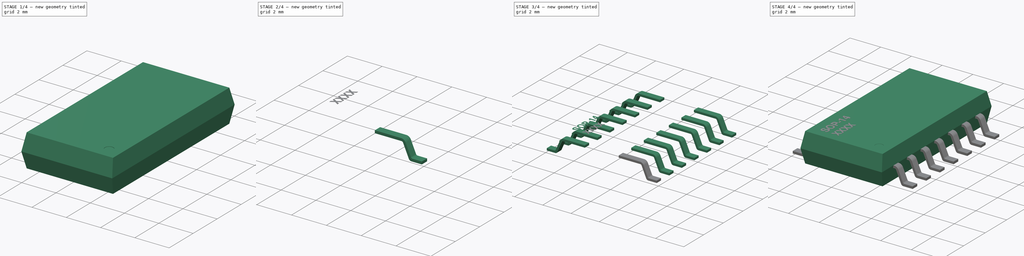
[diagram: build sequence overview — one tinted view per stage of 4, left to right]
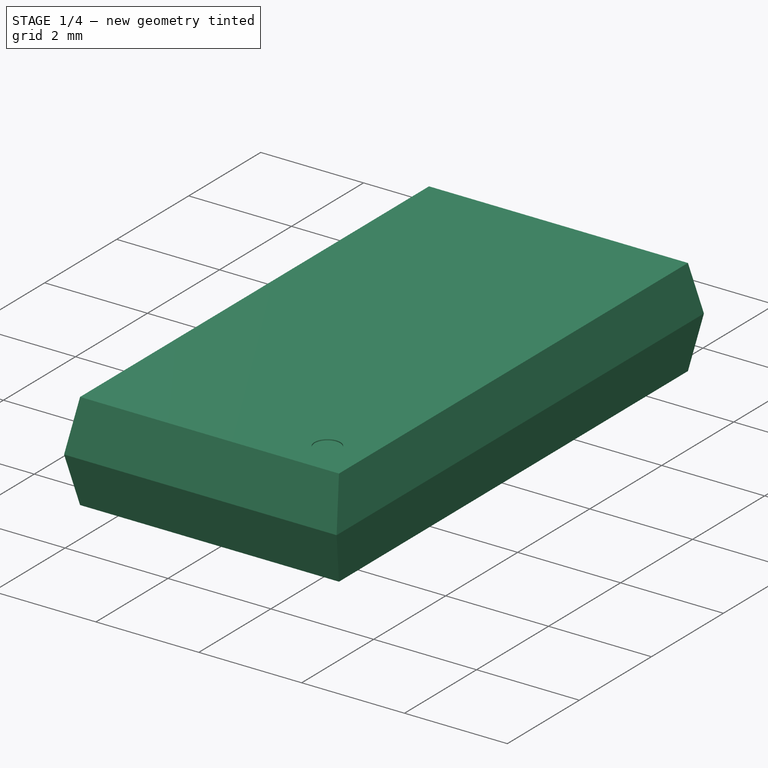
[diagram: stage 1 of 4 — iso view after this stage's code; geometry added in this stage tinted green]
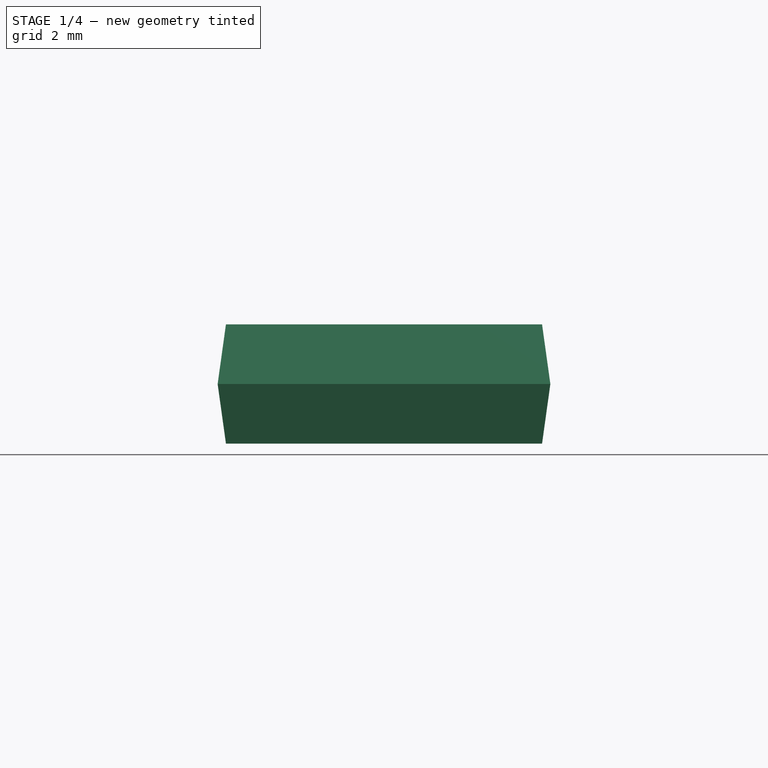
[diagram: stage 1 of 4 — front view after this stage's code; geometry added in this stage tinted green]
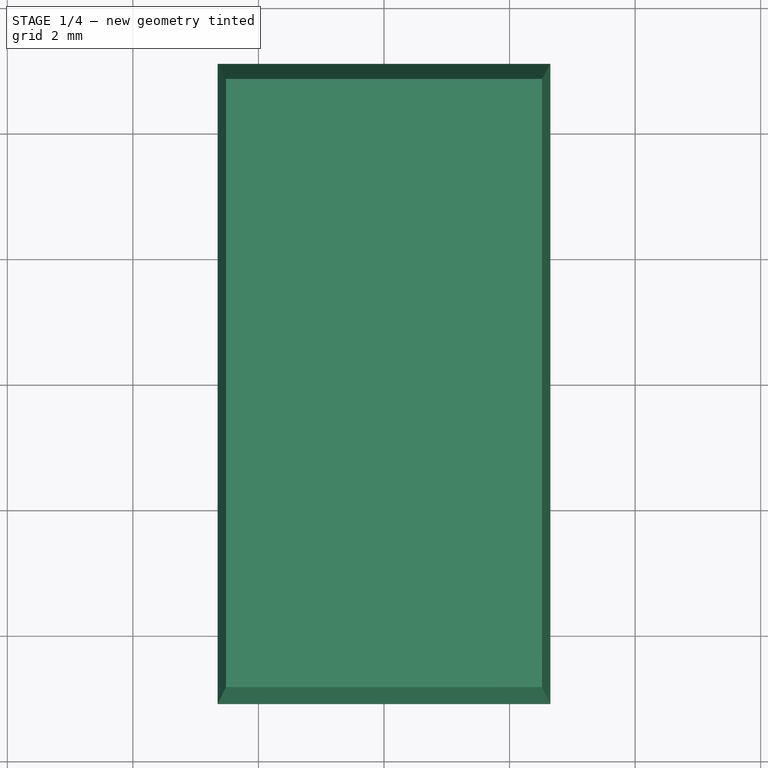
[diagram: stage 1 of 4 — top view after this stage's code; geometry added in this stage tinted green]
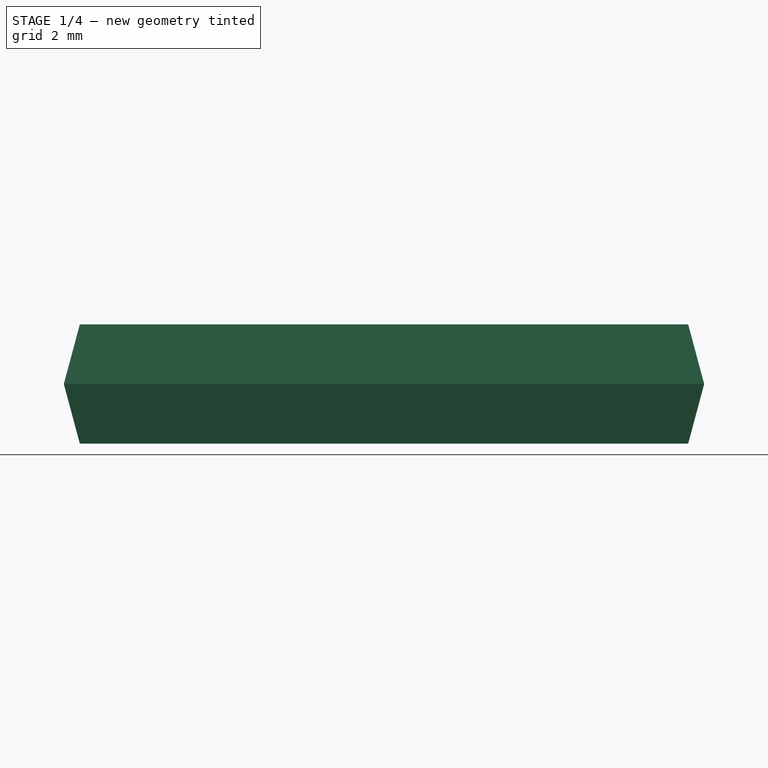
[diagram: stage 1 of 4 — right view after this stage's code; geometry added in this stage tinted green]
FCSTD DOCUMENT  (FreeCAD 0.19R16945 (Git))
Label: Texas Instruments Package NS (SOP-14)
License: All rights reserved
LicenseURL: http://en.wikipedia.org/wiki/All_rights_reserved
objects: Sketcher::SketchObject×6, PartDesign::Body×3, PartDesign::Pad×2, Part::Part2DObjectPython×2, Part::Extrusion×2, Part::FeaturePython×2, PartDesign::AdditiveLoft×1, PartDesign::Pocket×1, PartDesign::ShapeBinder×1, Part::MultiFuse×1
note: 25 computed .brp shape members not serialized (recipe doc carries the construction recipe); baked Part::Feature solids carry a one-line shape summary decoded from their .brp

FEATURE [Sketcher::SketchObject] Sketch  label="Mid"
  AttachmentOffset = pos=(0,0,1.05) rot=(0,0,1;0rad)
  MapMode = 5
  Placement = pos=(0,0,1.05) rot=(0,0,1;0rad)
  Support = -> [XY_Plane]
  expr: Constraints[10] = 10.2
  expr: Constraints[9] = 5.3
  expr: AttachmentOffset.Base.z = 1.05
  sketch-geometry (4):
    g0: LineSegment StartX=-2.65 StartY=5.1 StartZ=0 EndX=2.65 EndY=5.1 EndZ=0
    g1: LineSegment StartX=2.65 StartY=5.1 StartZ=0 EndX=2.65 EndY=-5.1 EndZ=0
    g2: LineSegment StartX=2.65 StartY=-5.1 StartZ=0 EndX=-2.65 EndY=-5.1 EndZ=0
    g3: LineSegment StartX=-2.65 StartY=-5.1 StartZ=0 EndX=-2.65 EndY=5.1 EndZ=0
  constraints (11):
    c: Coincident(g0,g1)
    c: Coincident(g1,g2)
    c: Coincident(g2,g3)
    c: Coincident(g3,g0)
    c: Horizontal(g0)
    c: Horizontal(g2)
    c: Vertical(g1)
    c: Vertical(g3)
    c: Symmetric(g1,g0,g-1)
    c: DistanceX(g0,g0) = 5.3
    c: DistanceY(g1,g1) = 10.2
FEATURE [Sketcher::SketchObject] Sketch001  label="Top"
  AttachmentOffset = pos=(0,0,2) rot=(0,0,1;0rad)
  MapMode = 5
  Placement = pos=(0,0,2) rot=(0,0,1;0rad)
  Support = -> [XY_Plane]
  expr: AttachmentOffset.Base.z = 2
  expr: Constraints[10] = 0.95 * Sketch.Constraints[10]
  expr: Constraints[9] = 0.95 * Sketch.Constraints[9]
  sketch-geometry (4):
    g0: LineSegment StartX=-2.5175 StartY=4.845 StartZ=0 EndX=2.5175 EndY=4.845 EndZ=0
    g1: LineSegment StartX=2.5175 StartY=4.845 StartZ=0 EndX=2.5175 EndY=-4.845 EndZ=0
    g2: LineSegment StartX=2.5175 StartY=-4.845 StartZ=0 EndX=-2.5175 EndY=-4.845 EndZ=0
    g3: LineSegment StartX=-2.5175 StartY=-4.845 StartZ=0 EndX=-2.5175 EndY=4.845 EndZ=0
  constraints (11):
    c: Coincident(g0,g1)
    c: Coincident(g1,g2)
    c: Coincident(g2,g3)
    c: Coincident(g3,g0)
    c: Horizontal(g0)
    c: Horizontal(g2)
    c: Vertical(g1)
    c: Vertical(g3)
    c: Symmetric(g1,g0,g-1)
    c: DistanceX(g0,g0) = 5.035
    c: DistanceY(g1,g1) = 9.69
FEATURE [Sketcher::SketchObject] Sketch002  label="Bottom"
  AttachmentOffset = pos=(0,0,0.1) rot=(0,0,1;0rad)
  MapMode = 5
  Placement = pos=(0,0,0.1) rot=(0,0,1;0rad)
  Support = -> [XY_Plane]
  expr: AttachmentOffset.Base.z = 0.1
  expr: Constraints[10] = Sketch001.Constraints[10]
  expr: Constraints[9] = Sketch001.Constraints[9]
  sketch-geometry (4):
    g0: LineSegment StartX=-2.5175 StartY=4.845 StartZ=0 EndX=2.5175 EndY=4.845 EndZ=0
    g1: LineSegment StartX=2.5175 StartY=4.845 StartZ=0 EndX=2.5175 EndY=-4.845 EndZ=0
    g2: LineSegment StartX=2.5175 StartY=-4.845 StartZ=0 EndX=-2.5175 EndY=-4.845 EndZ=0
    g3: LineSegment StartX=-2.5175 StartY=-4.845 StartZ=0 EndX=-2.5175 EndY=4.845 EndZ=0
  constraints (11):
    c: Coincident(g0,g1)
    c: Coincident(g1,g2)
    c: Coincident(g2,g3)
    c: Coincident(g3,g0)
    c: Horizontal(g0)
    c: Horizontal(g2)
    c: Vertical(g1)
    c: Vertical(g3)
    c: Symmetric(g1,g0,g-1)
    c: DistanceX(g0,g0) = 5.035
    c: DistanceY(g1,g1) = 9.69
FEATURE [PartDesign::AdditiveLoft] AdditiveLoft
  Closed = true
  Profile = -> Sketch001
  Ruled = true
  Sections = -> [Sketch,Sketch002]
FEATURE [PartDesign::Body] Body001  label="Lead"
  Group = -> [Sketch003,Pad]
  Origin = -> Origin001
  Tip = -> Pad
FEATURE [Sketcher::SketchObject] Sketch004
  ExternalGeometry = -> [AdditiveLoft]
  MapMode = 5
  Placement = pos=(0,0,2) rot=(0,0,1;0rad)
  Support = -> [AdditiveLoft]
  sketch-geometry (1):
    g0: Circle CenterX=1.7675 CenterY=-4.095 CenterZ=0 NormalX=0 NormalY=0 NormalZ=1 AngleXU=0 Radius=0.25
  constraints (3):
    c: DistanceY(g-4,g0) = 0.75
    c: DistanceX(g0,g-4) = 0.75
    c: Radius(g0) = 0.25
FEATURE [PartDesign::Pocket] Pocket
  BaseFeature = -> AdditiveLoft
  Length = 0.02
  Length2 = 100
  Profile = -> Sketch004
  Type = 0
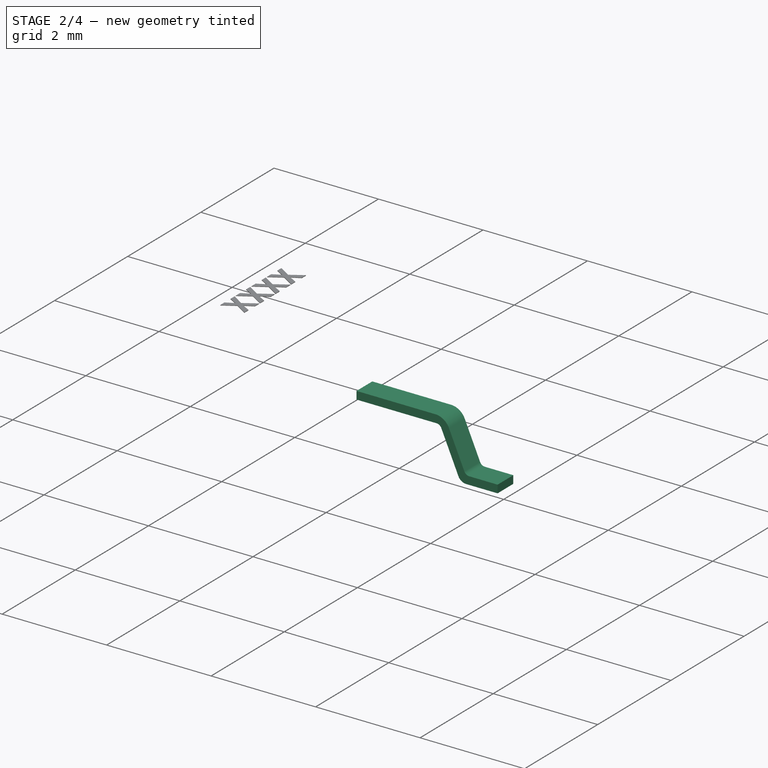
[diagram: stage 2 of 4 — iso view after this stage's code; geometry added in this stage tinted green]
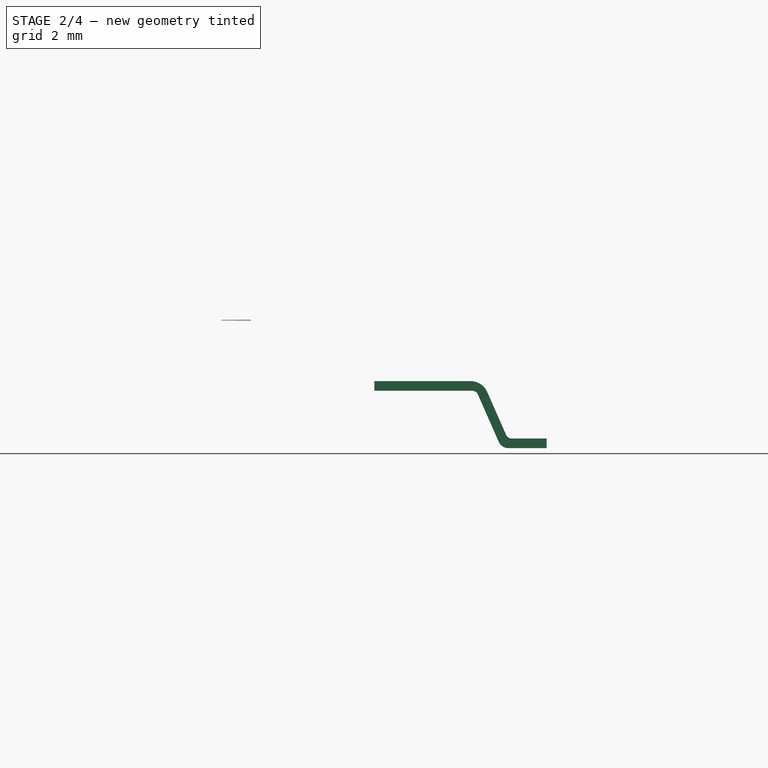
[diagram: stage 2 of 4 — front view after this stage's code; geometry added in this stage tinted green]
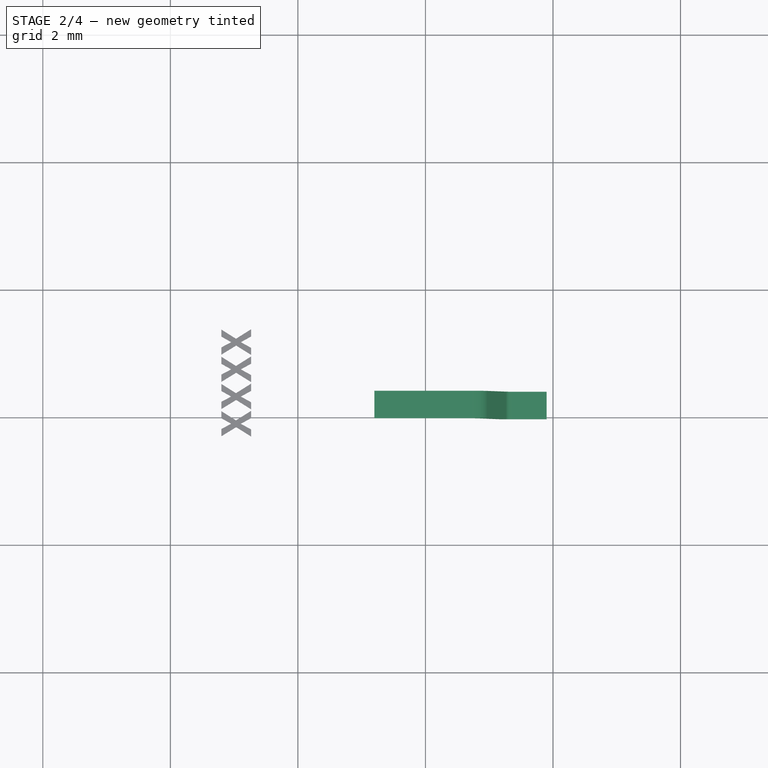
[diagram: stage 2 of 4 — top view after this stage's code; geometry added in this stage tinted green]
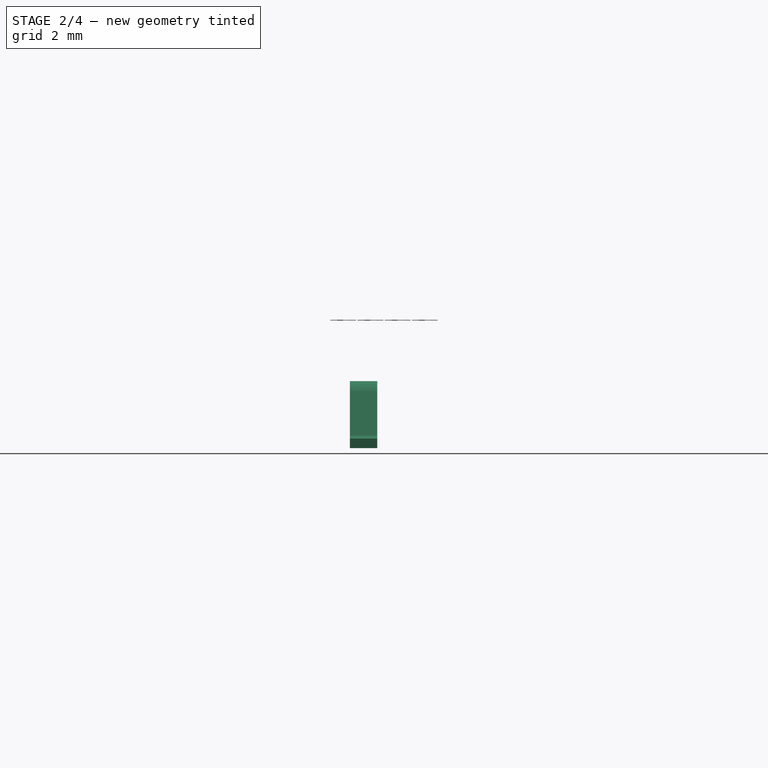
[diagram: stage 2 of 4 — right view after this stage's code; geometry added in this stage tinted green]
FEATURE [Sketcher::SketchObject] Sketch003
  AttachmentOffset = pos=(0,0,3.81) rot=(0,0,1;0rad)
  MapMode = 5
  Placement = pos=(0,-3.81,-8e-16) rot=(1,0,0;1.5708rad)
  Support = -> [XZ_Plane001]
  expr: AttachmentOffset.Base.z = 3 * 1.27
  expr: Constraints[30] = 0.75
  expr: Constraints[2] = 0.15
  sketch-geometry (14):
    g0: LineSegment StartX=3.9 StartY=0 StartZ=0 EndX=3.9 EndY=0.15 EndZ=0
    g1: LineSegment StartX=3.9 StartY=0 StartZ=0 EndX=3.29808 EndY=0 EndZ=0
    g2: ArcOfCircle CenterX=3.29808 CenterY=0.161765 CenterZ=0 NormalX=0 NormalY=0 NormalZ=1 AngleXU=0 Radius=0.161765 StartAngle=3.55588 EndAngle=4.71239
    g3: LineSegment StartX=3.15 StartY=0.0966483 StartZ=0 EndX=2.82301 EndY=0.840254 EndZ=0
    g4: ArcOfCircle CenterX=2.73147 CenterY=0.8 CenterZ=0 NormalX=0 NormalY=0 NormalZ=1 AngleXU=0 Radius=0.1 StartAngle=0.414288 EndAngle=1.5708
    g5: LineSegment StartX=2.73147 StartY=0.9 StartZ=0 EndX=1.20035 EndY=0.9 EndZ=0
    g6: LineSegment StartX=1.20035 StartY=0.9 StartZ=0 EndX=1.20035 EndY=1.05 EndZ=0
    g7: LineSegment StartX=1.20035 StartY=1.05 StartZ=0 EndX=2.70801 EndY=1.05 EndZ=0
    g8: ArcOfCircle CenterX=2.70801 CenterY=0.764062 CenterZ=0 NormalX=0 NormalY=0 NormalZ=1 AngleXU=0 Radius=0.285938 StartAngle=0.414288 EndAngle=1.5708
    g9: LineSegment StartX=2.96976 StartY=0.879163 StartZ=0 EndX=3.26413 EndY=0.209746 EndZ=0
    g10: ArcOfCircle CenterX=3.35567 CenterY=0.25 CenterZ=0 NormalX=0 NormalY=0 NormalZ=1 AngleXU=0 Radius=0.1 StartAngle=3.55588 EndAngle=4.71239
    g11: LineSegment StartX=3.35567 StartY=0.15 StartZ=0 EndX=3.9 EndY=0.15 EndZ=0
    g12: LineSegment [constr] StartX=2.90434 StartY=0.655294 StartZ=0 EndX=3.04165 EndY=0.715675 EndZ=0
    g13: GeomPoint X=1.20035 Y=0.975 Z=0
  constraints (32):
    c: Vertical(g0)
    c: DistanceX(g-1,g0) = 3.9
    c: DistanceY(g0,g0) = 0.15
    c: Coincident(g0,g1)
    c: Horizontal(g1)
    c: Tangent(g1,g2) = 1.5708
    c: Tangent(g2,g3) = 1.5708
    c: Tangent(g3,g4) = -1.5708
    c: Tangent(g4,g5) = -1.5708
    c: Coincident(g5,g6)
    c: Vertical(g6)
    c: Coincident(g6,g7)
    c: Horizontal(g7)
    c: Tangent(g7,g8) = 1.5708
    c: Tangent(g8,g9) = 1.5708
    c: Tangent(g9,g10) = -1.5708
    c: Tangent(g10,g11) = -1.5708
    c: Coincident(g11,g0)
    c: Horizontal(g11)
    c: Horizontal(g5)
    c: Parallel(g9,g3)
    c: Equal(g6,g0)
    c: PointOnObject(g12,g3)
    c: PointOnObject(g12,g9)
    c: Perpendicular(g3,g12)
    c: Equal(g0,g12)
    c: Equal(g10,g4)
    c: Radius(g10) = 0.1
    c: PointOnObject(g0,g-1)
    c: Symmetric(g6,g5,g13)
    c: DistanceX(g2,g0) = 0.75
    c: DistanceY(g-1,g6) = 1.05
FEATURE [PartDesign::Pad] Pad
  Length = 0.43
  Length2 = 100
  Midplane = true
  Placement = pos=(0,0,0) rot=(1,0,0;1.5708rad)
  Profile = -> Sketch003
  Type = 0
  expr: Length = 0.43
FEATURE [Part::Extrusion] Extrude001
  Base = -> ShapeString001
  Dir = (0,0,1)
  DirMode = 2
  FaceMakerClass = Part::FaceMakerBullseye
  LengthFwd = 0.01
  LengthRev = 0
  Solid = false
  Symmetric = false
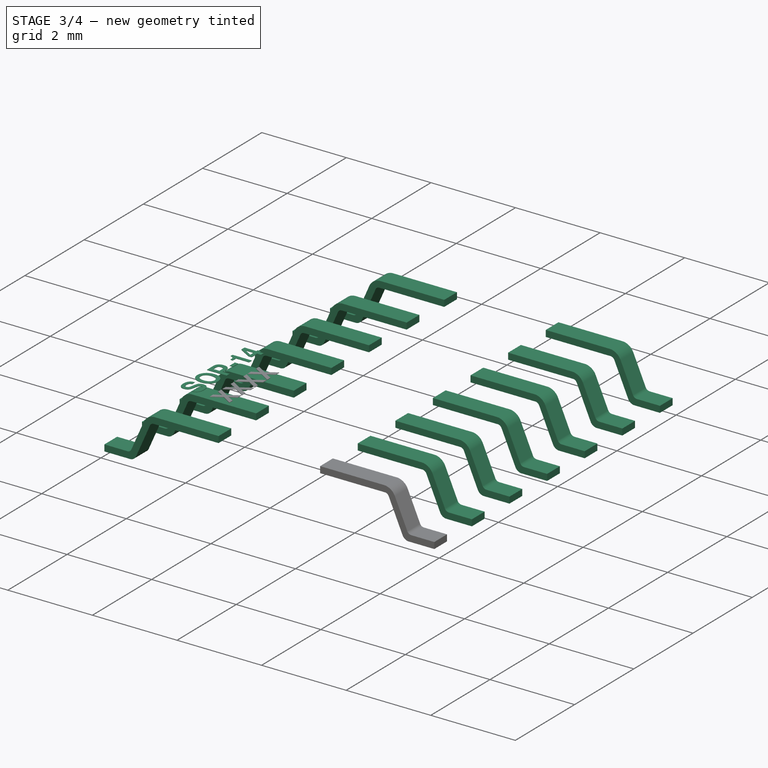
[diagram: stage 3 of 4 — iso view after this stage's code; geometry added in this stage tinted green]
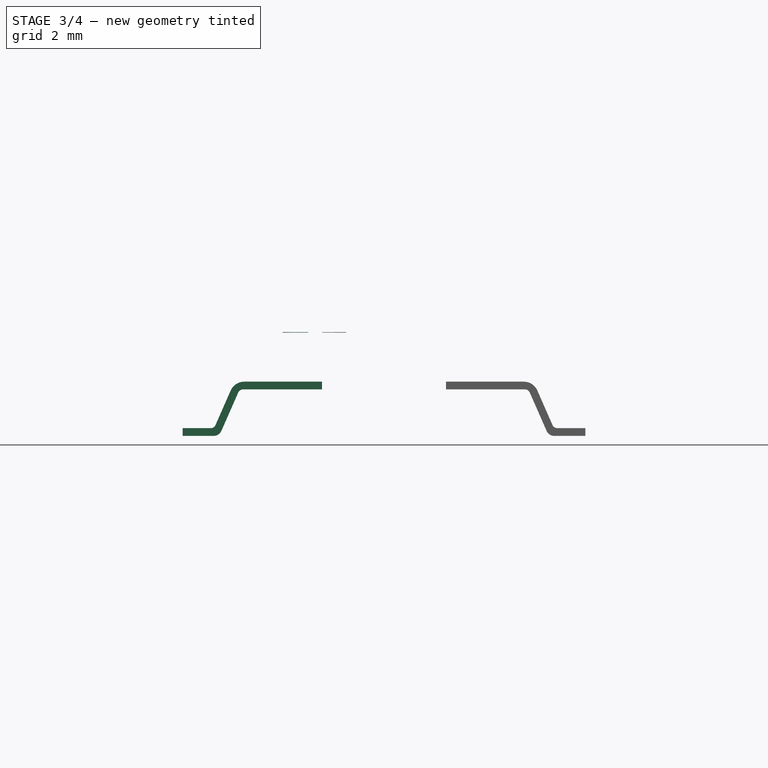
[diagram: stage 3 of 4 — front view after this stage's code; geometry added in this stage tinted green]
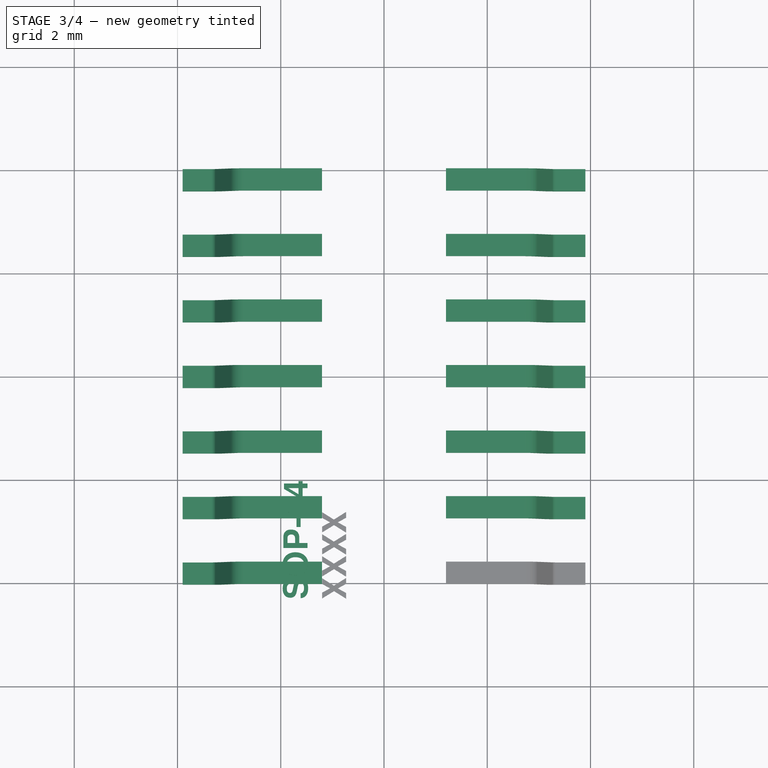
[diagram: stage 3 of 4 — top view after this stage's code; geometry added in this stage tinted green]
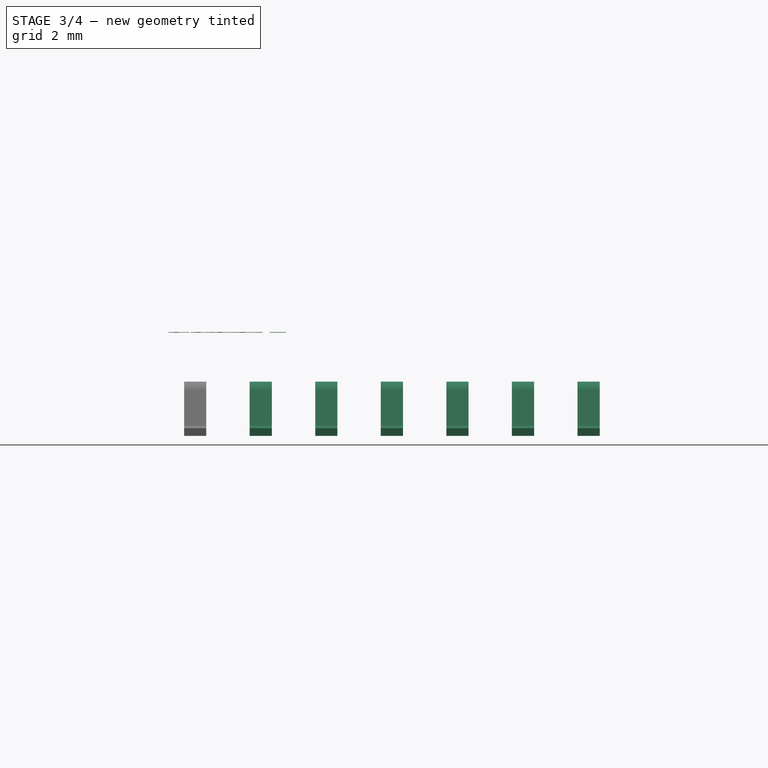
[diagram: stage 3 of 4 — right view after this stage's code; geometry added in this stage tinted green]
FEATURE [PartDesign::Body] Body002  label="Marking"
  Group = -> [ShapeBinder,Sketch005,Pad001]
  Origin = -> Origin002
  Tip = -> Pad001
FEATURE [Part::Part2DObjectPython] ShapeString  # Draft 2D object (typed FeaturePython)
  AttachmentOffset = pos=(4,-0.5,0) rot=(0,0,1;-1.5708rad)
  FontFile = <userpath>/Desktop/GitHub/freecad-projects/00-fonts/FreeSansBold.ttf
  MapMode = 6
  Placement = pos=(-1.4825,-4.345,2) rot=(0,0,-1;4.71239rad)
  Size = 0.25
  String = SOP-14
  Support = -> [Pocket]
  Tracking = 0
FEATURE [Part::Part2DObjectPython] ShapeString001  # Draft 2D object (typed FeaturePython)
  AttachmentOffset = pos=(3.25,-0.5,0) rot=(0,0,-1;1.5708rad)
  FontFile = <userpath>/Desktop/GitHub/freecad-projects/00-fonts/FreeSansBold.ttf
  MapMode = 6
  Placement = pos=(-0.7325,-4.345,2) rot=(0,0,1;1.5708rad)
  Size = 0.25
  String = XXXX
  Support = -> [Pocket]
  Tracking = 0
FEATURE [Part::Extrusion] Extrude
  Base = -> ShapeString
  Dir = (0,0,1)
  DirMode = 2
  FaceMakerClass = Part::FaceMakerBullseye
  LengthFwd = 0.01
  LengthRev = 0
  Solid = false
  Symmetric = false
FEATURE [Part::FeaturePython] Array  # Draft array (typed FeaturePython)
  Angle = 360
  ArrayType = 0
  Axis = (0,0,1)
  Base = -> Body001
  Center = (0,0,0)
  Fuse = false
  IntervalAxis = (0,0,0)
  IntervalX = (1,0,0)
  IntervalY = (0,1.27,0)
  IntervalZ = (0,0,1)
  NumberPolar = 1
  NumberX = 1
  NumberY = 7
  NumberZ = 1
FEATURE [Part::FeaturePython] Array001  # Draft array (typed FeaturePython)
  Angle = 180
  ArrayType = 1
  Axis = (0,0,1)
  Base = -> Array
  Center = (0,0,0)
  Fuse = false
  IntervalAxis = (0,0,0)
  IntervalX = (1,0,0)
  IntervalY = (0,1,0)
  IntervalZ = (0,0,1)
  NumberPolar = 2
  NumberX = 2
  NumberY = 2
  NumberZ = 1
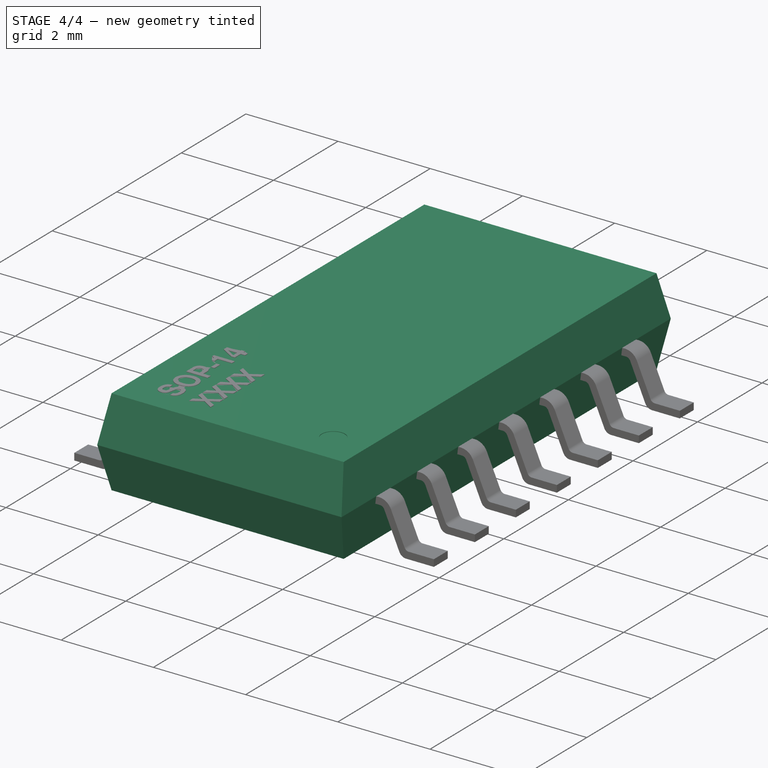
[diagram: stage 4 of 4 — iso view after this stage's code; geometry added in this stage tinted green]
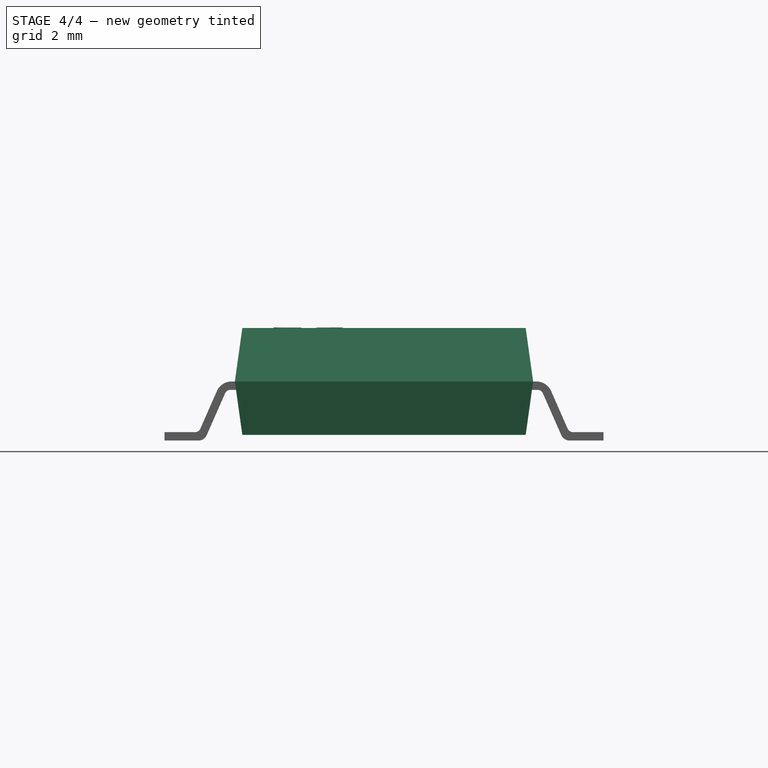
[diagram: stage 4 of 4 — front view after this stage's code; geometry added in this stage tinted green]
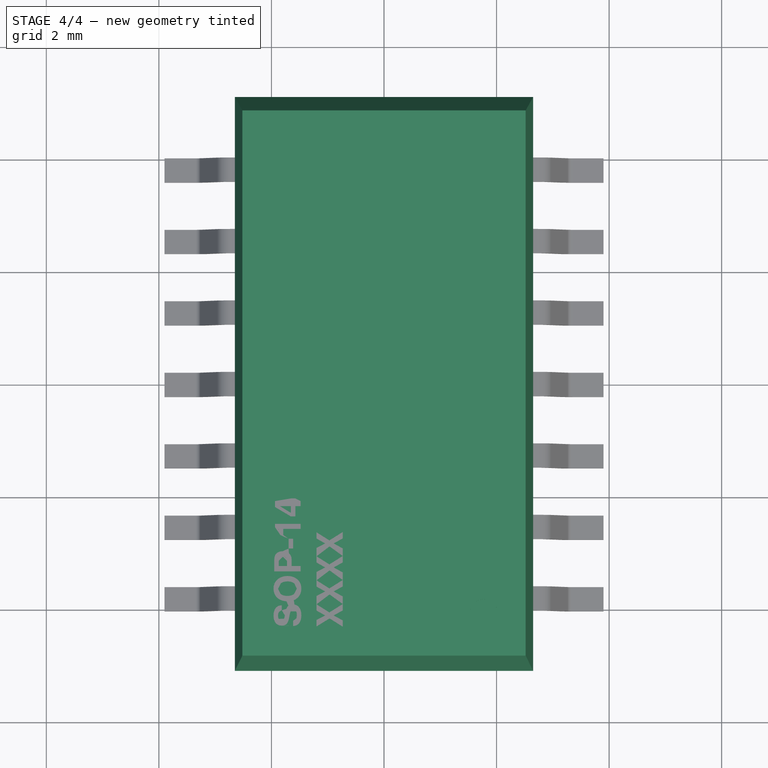
[diagram: stage 4 of 4 — top view after this stage's code; geometry added in this stage tinted green]
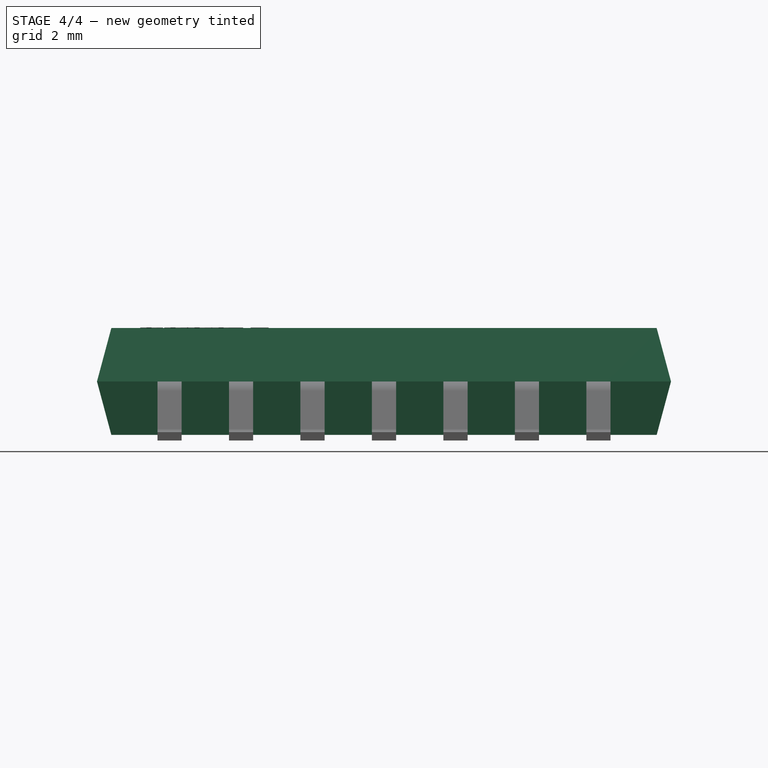
[diagram: stage 4 of 4 — right view after this stage's code; geometry added in this stage tinted green]
FEATURE [PartDesign::Body] Body  label="Package"
  Group = -> [Sketch,Sketch001,Sketch002,AdditiveLoft,Sketch004,Pocket]
  Origin = -> Origin
  Tip = -> Pocket
FEATURE [PartDesign::ShapeBinder] ShapeBinder
  Placement = pos=(0,0,-0.02) rot=(0,0,1;0rad)
  Support = -> [Pocket]
  TraceSupport = false
FEATURE [Sketcher::SketchObject] Sketch005
  ExternalGeometry = -> [ShapeBinder]
  MapMode = 5
  Placement = pos=(0,0,1.98) rot=(0,0,1;0rad)
  Support = -> [ShapeBinder]
  sketch-geometry (1):
    g0: Circle CenterX=1.7675 CenterY=-4.095 CenterZ=0 NormalX=0 NormalY=0 NormalZ=1 AngleXU=0 Radius=0.25
  constraints (2):
    c: Coincident(g0,g-3)
    c: Equal(g-3,g0)
FEATURE [PartDesign::Pad] Pad001
  Length = 0.01
  Length2 = 100
  Placement = pos=(0,0,-0.02) rot=(0,0,1;0rad)
  Profile = -> Sketch005
  Type = 0
FEATURE [Part::MultiFuse] Fusion
  Shapes = -> [Array001,Body,Extrude001,Extrude,Body002]
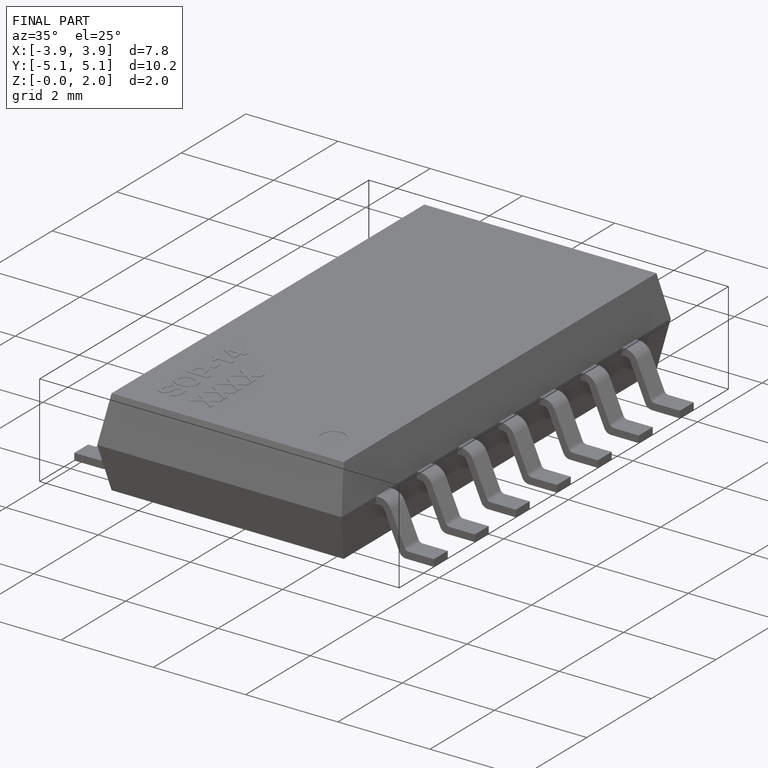
[diagram: finished part — iso view with bounding-box wireframe]
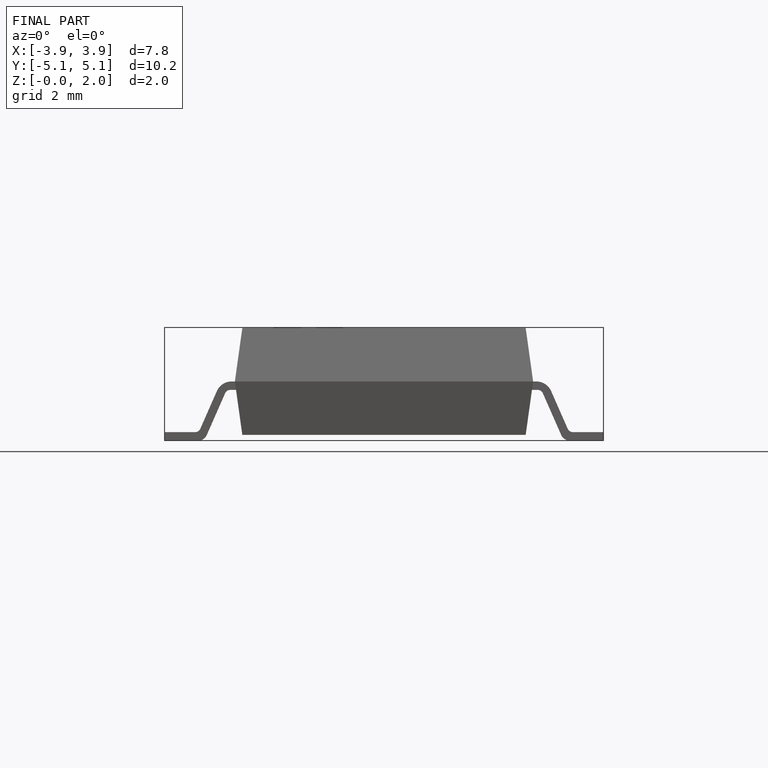
[diagram: finished part — front view with bounding-box wireframe]
